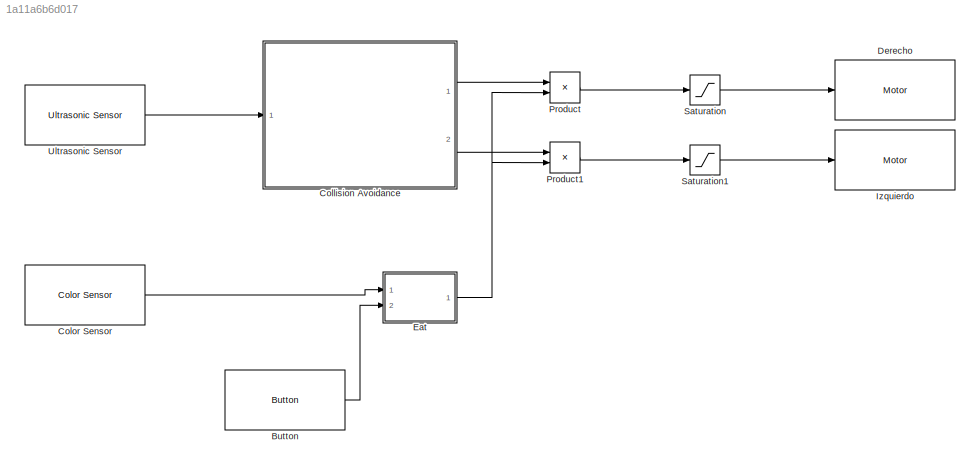
MODEL slx_1a11a6b6d017
KIND model
CONFIG AbsTol = auto
CONFIG EnableMultiTasking = on
CONFIG FixedStep = auto
CONFIG MaxStep = auto
CONFIG MinStep = auto
CONFIG RelTol = 1e-3
CONFIG SampleTimeConstraint = Unconstrained
CONFIG Solver = FixedStepAuto
CONFIG SolverName = FixedStepAuto
CONFIG StartTime = 0.0
CONFIG StopTime = 10.0
BLOCK [Reference] Button  REF=legoev3lib/Button
  Ports = [0, 1]
  SourceBlock = legoev3lib/Button
  SourceType = LEGO MINDSTORMS EV3 Button
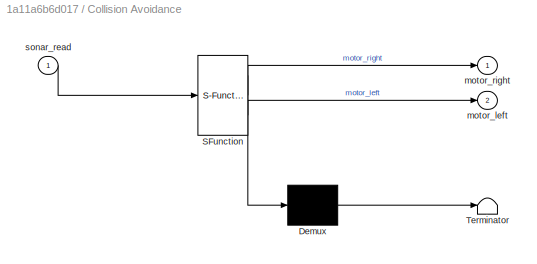
BLOCK [SubSystem] Collision Avoidance
  ErrorFcn = Stateflow.Translate.translate
  PermitHierarchicalResolution = ExplicitOnly
  Ports = [1, 2]
  RequestExecContextInheritance = off
  SFBlockType = MATLAB Function
  TreatAsAtomicUnit = on
  Variant = off
BLOCK [Demux] Collision Avoidance/ Demux 
  Outputs = 1
  Ports = [1, 1]
BLOCK [S-Function] Collision Avoidance/ SFunction 
  EnableBusSupport = on
  FunctionName = sf_sfun
  PortCounts = [1 3]
  Ports = [1, 3]
  SFcnIsStateOwnerBlock = off
  SFunctionDeploymentMode = off
  Tag = Stateflow S-Function seek_and_eat 2
BLOCK [Terminator] Collision Avoidance/ Terminator 
BLOCK [Outport] Collision Avoidance/motor_left
  IconDisplay = Port number
  Port = 2
BLOCK [Outport] Collision Avoidance/motor_right
  IconDisplay = Port number
BLOCK [Inport] Collision Avoidance/sonar_read
  IconDisplay = Port number
BLOCK [Reference] Color Sensor  REF=legoev3lib/Color Sensor
  Ports = [0, 1]
  SourceBlock = legoev3lib/Color Sensor
  SourceType = LEGO MINDSTORMS EV3 Color Sensor
BLOCK [Reference] Derecho  REF=legoev3lib/Motor
  Ports = [1]
  SourceBlock = legoev3lib/Motor
  SourceType = LEGO MINDSTORMS EV3 Motor
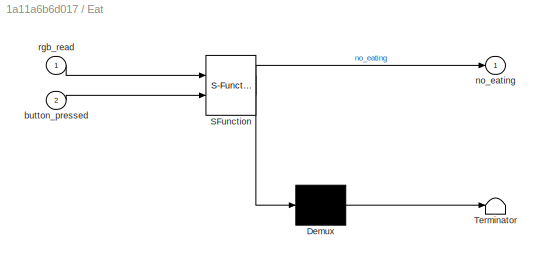
BLOCK [SubSystem] Eat 
  ErrorFcn = Stateflow.Translate.translate
  PermitHierarchicalResolution = ExplicitOnly
  Ports = [2, 1]
  RequestExecContextInheritance = off
  SFBlockType = MATLAB Function
  TreatAsAtomicUnit = on
  Variant = off
BLOCK [Demux] Eat / Demux 
  Outputs = 1
  Ports = [1, 1]
BLOCK [S-Function] Eat / SFunction 
  EnableBusSupport = on
  FunctionName = sf_sfun
  PortCounts = [2 2]
  Ports = [2, 2]
  SFcnIsStateOwnerBlock = off
  SFunctionDeploymentMode = off
  Tag = Stateflow S-Function seek_and_eat 1
BLOCK [Terminator] Eat / Terminator 
BLOCK [Inport] Eat /button_pressed
  IconDisplay = Port number
  Port = 2
BLOCK [Outport] Eat /no_eating
  IconDisplay = Port number
BLOCK [Inport] Eat /rgb_read
  IconDisplay = Port number
BLOCK [Reference] Izquierdo   REF=legoev3lib/Motor
  Ports = [1]
  SourceBlock = legoev3lib/Motor
  SourceType = LEGO MINDSTORMS EV3 Motor
BLOCK [Product] Product
  InputSameDT = off
  OutDataTypeStr = Inherit: Inherit via internal rule
  Ports = [2, 1]
  RndMeth = Floor
  SaturateOnIntegerOverflow = off
BLOCK [Product] Product1
  InputSameDT = off
  OutDataTypeStr = Inherit: Inherit via internal rule
  Ports = [2, 1]
  RndMeth = Floor
  SaturateOnIntegerOverflow = off
BLOCK [Saturate] Saturation
  InputPortMap = u0
  LowerLimit = -15
  Ports = [1, 1]
  UpperLimit = 45
BLOCK [Saturate] Saturation1
  InputPortMap = u0
  LowerLimit = -15
  Ports = [1, 1]
  UpperLimit = 35
BLOCK [Reference] Ultrasonic Sensor  REF=legoev3lib/Ultrasonic Sensor
  Ports = [0, 1]
  SourceBlock = legoev3lib/Ultrasonic Sensor
  SourceType = LEGO MINDSTORMS EV3 Ultrasonic Sensor
LINE Button:1 -> Eat :2
LINE Collision Avoidance:1 -> Product:1
LINE Collision Avoidance:2 -> Product1:1
LINE Color Sensor:1 -> Eat :1
NET Eat :1 -> Product1:2, Product:2
LINE Product1:1 -> Saturation1:1
LINE Product:1 -> Saturation:1
LINE Saturation1:1 -> Izquierdo :1
LINE Saturation:1 -> Derecho:1
LINE Ultrasonic Sensor:1 -> Collision Avoidance:1
note: NET lines group one-source signal fan-out (src -> all destinations, sorted); 1:1 wires keep LINE
CHART Eat
 states=1 transitions=1
  STATE_LABEL 'eML_blk_kernel()'
  STATE_LABEL 'SCRIPT:\nfunction no_eating  = eat(rgb_read, button_pressed)\n    persistent no_eating_per\n    if isempty(no_eating_per)\n        no_eating_per = 1;\n    end\n    if (button_pressed == 1 && no_eating_per == 0)\n        no_eating_per = 1;\n    elseif(rgb_read > 60) \n        no_eating_per = 0;\n    end\n    no_eating = no_eating_per;\n\nend\n'
CHART Collision Avoidance states=1 transitions=1
  STATE_LABEL 'eML_blk_kernel()'
  STATE_LABEL 'SCRIPT:\nfunction [motor_right, motor_left] = fcn(sonar_read)\n    if(sonar_read < 40 )\n        motor_right = -50;\n        motor_left = 50;\n    else\n        \n        motor_right = round(100*rand);\n        motor_left = round(100*rand);\n    end\nend\n'
